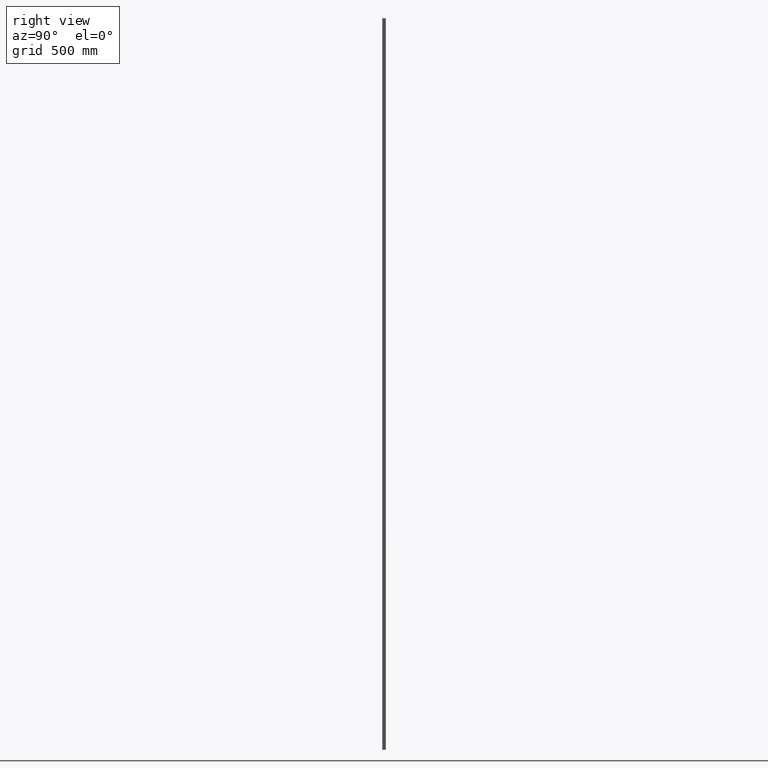
[diagram: clean part render]
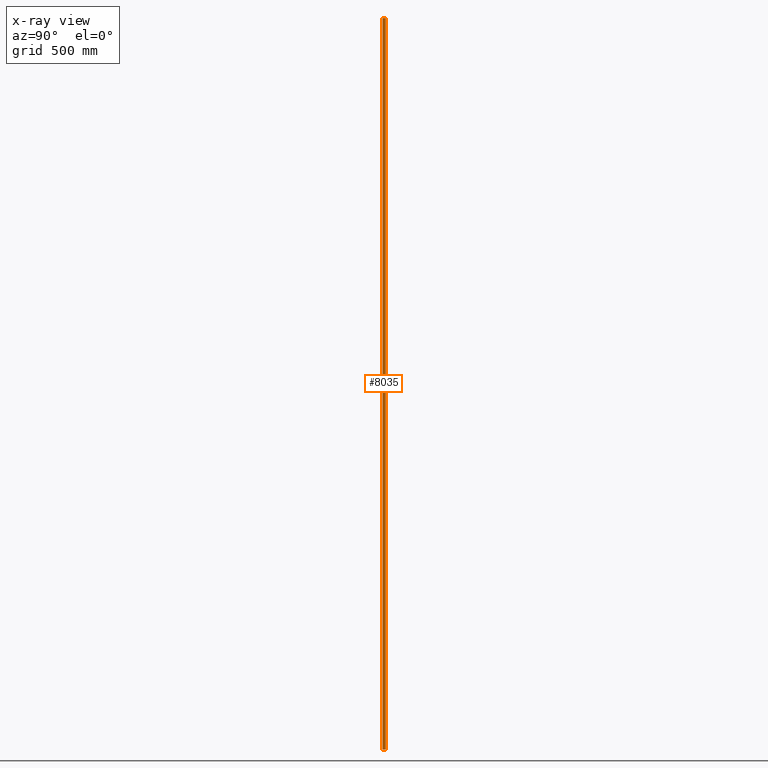
[diagram: x-ray — body ghosted, one internal face saturated and labeled with its STEP entity id]
A machine part, right view, then the same camera in x-ray: the body is ghosted and one INTERNAL B-rep face — a face not visible from any outside direction — is saturated and labeled: STEP entity #8035.
In plain terms, the highlighted planar face has unit normal (1, 0, 0).
Its self-contained STEP definition (entity closure, byte-faithful):
#1425 = CARTESIAN_POINT ( 'NONE',  ( -0.9999999999994457800, 1.000000000000000900, 0.0000000000000000000 ) ) ;
#1459 = CARTESIAN_POINT ( 'NONE',  ( -0.9999999999994457800, 13.30000000000020000, 0.0000000000000000000 ) ) ;
#1492 = CARTESIAN_POINT ( 'NONE',  ( -0.9999999999994457800, 13.30000000000020000, 3000.000000000000000 ) ) ;
#1562 = CARTESIAN_POINT ( 'NONE',  ( -0.9999999999994457800, 1.000000000000000900, 3000.000000000000000 ) ) ;
#2358 = DIRECTION ( 'NONE',  ( -0.0000000000000000000, -1.000000000000000000, -0.0000000000000000000 ) ) ;
#2364 = CARTESIAN_POINT ( 'NONE',  ( -0.9999999999994457800, 1.000000000000000900, 0.0000000000000000000 ) ) ;
#2372 = LINE ( 'NONE', #2364, #7228 ) ;
#2375 = DIRECTION ( 'NONE',  ( -0.0000000000000000000, -1.000000000000000000, -0.0000000000000000000 ) ) ;
#2381 = LINE ( 'NONE', #2393, #7260 ) ;
#2393 = CARTESIAN_POINT ( 'NONE',  ( -0.9999999999994457800, 1.000000000000000900, 3000.000000000000000 ) ) ;
#3479 = FACE_OUTER_BOUND ( 'NONE', #6617, .T. ) ;
#3485 = DIRECTION ( 'NONE',  ( 0.0000000000000000000, 0.0000000000000000000, -1.000000000000000000 ) ) ;
#3490 = CARTESIAN_POINT ( 'NONE',  ( -0.9999999999994457800, 1.000000000000000900, 3000.000000000000000 ) ) ;
#3496 = DIRECTION ( 'NONE',  ( 1.000000000000000000, 0.0000000000000000000, 0.0000000000000000000 ) ) ;
#3500 = PLANE ( 'NONE',  #4164 ) ;
#4164 = AXIS2_PLACEMENT_3D ( 'NONE', #3490, #3496, #3485 ) ;
#4583 = VECTOR ( 'NONE', #4664, 1000.000000000000000 ) ;
#4660 = CARTESIAN_POINT ( 'NONE',  ( -0.9999999999994457800, 1.000000000000000900, 3000.000000000000000 ) ) ;
#4664 = DIRECTION ( 'NONE',  ( -0.0000000000000000000, -0.0000000000000000000, -1.000000000000000000 ) ) ;
#5111 = LINE ( 'NONE', #4660, #4583 ) ;
#5644 = EDGE_CURVE ( 'NONE', #9408, #8523, #5111, .T. ) ;
#6617 = EDGE_LOOP ( 'NONE', ( #9047, #9017, #9034, #9062 ) ) ;
#7225 = VECTOR ( 'NONE', #9604, 1000.000000000000000 ) ;
#7228 = VECTOR ( 'NONE', #2358, 1000.000000000000000 ) ;
#7260 = VECTOR ( 'NONE', #2375, 1000.000000000000000 ) ;
#7678 = EDGE_CURVE ( 'NONE', #8583, #9408, #2381, .T. ) ;
#7715 = EDGE_CURVE ( 'NONE', #8535, #8523, #2372, .T. ) ;
#7751 = EDGE_CURVE ( 'NONE', #8583, #8535, #9602, .T. ) ;
#8035 = ADVANCED_FACE ( 'NONE', ( #3479 ), #3500, .F. ) ;
#8523 = VERTEX_POINT ( 'NONE', #1425 ) ;
#8535 = VERTEX_POINT ( 'NONE', #1459 ) ;
#8583 = VERTEX_POINT ( 'NONE', #1492 ) ;
#9017 = ORIENTED_EDGE ( 'NONE', *, *, #5644, .F. ) ;
#9034 = ORIENTED_EDGE ( 'NONE', *, *, #7678, .F. ) ;
#9047 = ORIENTED_EDGE ( 'NONE', *, *, #7715, .T. ) ;
#9062 = ORIENTED_EDGE ( 'NONE', *, *, #7751, .T. ) ;
#9408 = VERTEX_POINT ( 'NONE', #1562 ) ;
#9602 = LINE ( 'NONE', #9603, #7225 ) ;
#9603 = CARTESIAN_POINT ( 'NONE',  ( -0.9999999999994457800, 13.30000000000020000, 3000.000000000000000 ) ) ;
#9604 = DIRECTION ( 'NONE',  ( -0.0000000000000000000, -0.0000000000000000000, -1.000000000000000000 ) ) ;